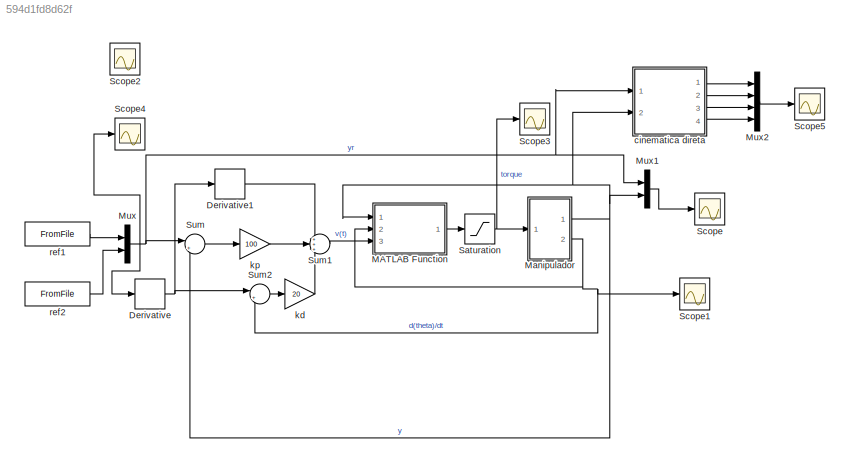
MODEL slx_594d1fd8d62f
KIND model
CONFIG AbsTol = auto
CONFIG FixedStep = 0.01
CONFIG MaxStep = 0.01
CONFIG MinStep = auto
CONFIG RelTol = 1e-3
CONFIG SampleTimeConstraint = Unconstrained
CONFIG Solver = ode4
CONFIG SolverMode = Auto
CONFIG SolverName = ode4
CONFIG StartTime = 0.0
CONFIG StopTime = tsim
BLOCK [Derivative] Derivative
BLOCK [Derivative] Derivative1
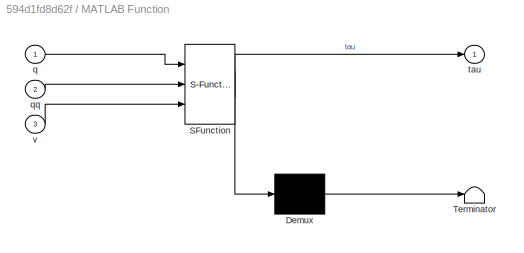
BLOCK [SubSystem] MATLAB Function
  ErrorFcn = Stateflow.Translate.translate
  PermitHierarchicalResolution = ExplicitOnly
  Ports = [3, 1]
  RequestExecContextInheritance = off
  SFBlockType = MATLAB Function
  TreatAsAtomicUnit = on
BLOCK [Demux] MATLAB Function/ Demux 
  Outputs = 1
  Ports = [1, 1]
BLOCK [S-Function] MATLAB Function/ SFunction 
  EnableBusSupport = on
  FunctionName = sf_sfun
  PortCounts = [3 2]
  Ports = [3, 2]
  Tag = Stateflow S-Function manipulador_PD_trajet 2
BLOCK [Terminator] MATLAB Function/ Terminator 
BLOCK [Inport] MATLAB Function/q
  IconDisplay = Port number
BLOCK [Inport] MATLAB Function/qq
  IconDisplay = Port number
  Port = 2
BLOCK [Outport] MATLAB Function/tau
  IconDisplay = Port number
BLOCK [Inport] MATLAB Function/v
  IconDisplay = Port number
  Port = 3
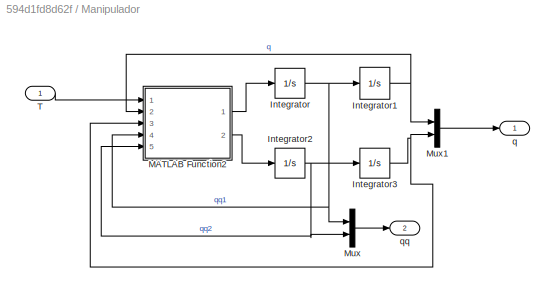
BLOCK [SubSystem] Manipulador
  Ports = [1, 2]
  RequestExecContextInheritance = off
BLOCK [Integrator] Manipulador/Integrator
  Ports = [1, 1]
BLOCK [Integrator] Manipulador/Integrator1
  Ports = [1, 1]
BLOCK [Integrator] Manipulador/Integrator2
  Ports = [1, 1]
BLOCK [Integrator] Manipulador/Integrator3
  InitialCondition = pi/4
  Ports = [1, 1]
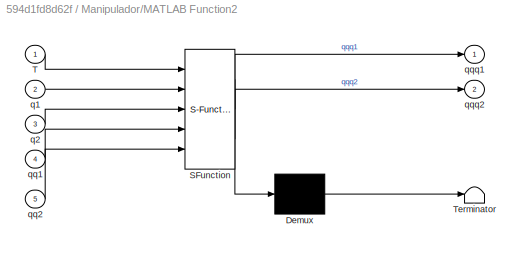
BLOCK [SubSystem] Manipulador/MATLAB Function2
  ErrorFcn = Stateflow.Translate.translate
  PermitHierarchicalResolution = ExplicitOnly
  Ports = [5, 2]
  RequestExecContextInheritance = off
  SFBlockType = MATLAB Function
  TreatAsAtomicUnit = on
BLOCK [Demux] Manipulador/MATLAB Function2/ Demux 
  Outputs = 1
  Ports = [1, 1]
BLOCK [S-Function] Manipulador/MATLAB Function2/ SFunction 
  EnableBusSupport = on
  FunctionName = sf_sfun
  PortCounts = [5 3]
  Ports = [5, 3]
  Tag = Stateflow S-Function manipulador_PD_trajet 3
BLOCK [Terminator] Manipulador/MATLAB Function2/ Terminator 
BLOCK [Inport] Manipulador/MATLAB Function2/T
  IconDisplay = Port number
BLOCK [Inport] Manipulador/MATLAB Function2/q1
  IconDisplay = Port number
  Port = 2
BLOCK [Inport] Manipulador/MATLAB Function2/q2
  IconDisplay = Port number
  Port = 3
BLOCK [Inport] Manipulador/MATLAB Function2/qq1
  IconDisplay = Port number
  Port = 4
BLOCK [Inport] Manipulador/MATLAB Function2/qq2
  IconDisplay = Port number
  Port = 5
BLOCK [Outport] Manipulador/MATLAB Function2/qqq1
  IconDisplay = Port number
BLOCK [Outport] Manipulador/MATLAB Function2/qqq2
  IconDisplay = Port number
  Port = 2
BLOCK [Mux] Manipulador/Mux
  DisplayOption = bar
  Inputs = 2
  Ports = [2, 1]
BLOCK [Mux] Manipulador/Mux1
  DisplayOption = bar
  Inputs = 2
  Ports = [2, 1]
BLOCK [Inport] Manipulador/T
  IconDisplay = Port number
BLOCK [Outport] Manipulador/q
  IconDisplay = Port number
  PortDimensions = 2
BLOCK [Outport] Manipulador/qq
  IconDisplay = Port number
  Port = 2
  PortDimensions = 2
BLOCK [Mux] Mux
  DisplayOption = bar
  Inputs = 2
  Ports = [2, 1]
BLOCK [Mux] Mux1
  DisplayOption = bar
  Inputs = 2
  Ports = [2, 1]
BLOCK [Mux] Mux2
  DisplayOption = bar
  Ports = [4, 1]
BLOCK [Saturate] Saturation
  InputPortMap = u0
  LowerLimit = -100
  Ports = [1, 1]
  UpperLimit = 100
BLOCK [Scope] Scope
  Floating = off
  LegendLocations = 0.76095     0.48946     0.12239     0.15793
  LimitDataPoints = off
  NumInputPorts = 1
  Ports = [1]
  SaveName = x
  SaveToWorkspace = on
  ShowLegends = on
BLOCK [Scope] Scope1
  Floating = off
  NumInputPorts = 1
  Ports = [1]
  SaveName = ScopeData1
  ShowLegends = on
BLOCK [Scope] Scope2
  DataFormat = StructureWithTime
  Floating = off
  IOType = viewer
  NumInputPorts = 1
  Ports = []
  SampleTime = 0
  SaveName = ScopeData2
BLOCK [Scope] Scope3
  Floating = off
  LegendLocations = 0.67997     0.68438     0.20779     0.11364
  NumInputPorts = 1
  Ports = [1]
  SaveName = ScopeData3
  ShowLegends = on
BLOCK [Scope] Scope4
  Floating = off
  LegendLocations = 0.83476     0.69249     0.11111     0.14085
  NumInputPorts = 1
  Ports = [1]
  SaveName = ScopeData4
  ShowLegends = on
BLOCK [Scope] Scope5
  Floating = off
  LimitDataPoints = off
  NumInputPorts = 1
  Ports = [1]
  SaveName = xy
  SaveToWorkspace = on
  ShowLegends = on
BLOCK [Sum] Sum
  IconShape = round
  InputSameDT = off
  Inputs = |+-
  OutDataTypeStr = Inherit: Inherit via internal rule
  Ports = [2, 1]
  SaturateOnIntegerOverflow = off
BLOCK [Sum] Sum1
  IconShape = round
  InputSameDT = off
  Inputs = +++
  OutDataTypeStr = Inherit: Inherit via internal rule
  Ports = [3, 1]
  SaturateOnIntegerOverflow = off
BLOCK [Sum] Sum2
  IconShape = round
  InputSameDT = off
  Inputs = |+-
  OutDataTypeStr = Inherit: Inherit via internal rule
  Ports = [2, 1]
  SaturateOnIntegerOverflow = off
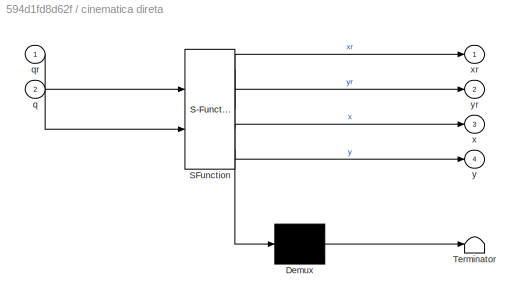
BLOCK [SubSystem] cinematica direta
  ErrorFcn = Stateflow.Translate.translate
  PermitHierarchicalResolution = ExplicitOnly
  Ports = [2, 4]
  RequestExecContextInheritance = off
  SFBlockType = MATLAB Function
  TreatAsAtomicUnit = on
BLOCK [Demux] cinematica direta/ Demux 
  Outputs = 1
  Ports = [1, 1]
BLOCK [S-Function] cinematica direta/ SFunction 
  EnableBusSupport = on
  FunctionName = sf_sfun
  PortCounts = [2 5]
  Ports = [2, 5]
  Tag = Stateflow S-Function manipulador_PD_trajet 1
BLOCK [Terminator] cinematica direta/ Terminator 
BLOCK [Inport] cinematica direta/q
  IconDisplay = Port number
  Port = 2
BLOCK [Inport] cinematica direta/qr
  IconDisplay = Port number
BLOCK [Outport] cinematica direta/x
  IconDisplay = Port number
  Port = 3
BLOCK [Outport] cinematica direta/xr
  IconDisplay = Port number
BLOCK [Outport] cinematica direta/y
  IconDisplay = Port number
  Port = 4
BLOCK [Outport] cinematica direta/yr
  IconDisplay = Port number
  Port = 2
BLOCK [Gain] kd
  Gain = 20
  OutDataTypeStr = Inherit: Inherit via internal rule
  ParamDataTypeStr = Inherit: Inherit via internal rule
  SaturateOnIntegerOverflow = off
BLOCK [Gain] kp
  Gain = 100
  OutDataTypeStr = Inherit: Inherit via internal rule
  ParamDataTypeStr = Inherit: Inherit via internal rule
  SaturateOnIntegerOverflow = off
BLOCK [FromFile] ref1
  FileName = ref1.mat
  SampleTime = 0
BLOCK [FromFile] ref2
  FileName = ref2.mat
  SampleTime = 0
LINE Derivative1:1 -> Sum1:1
NET Derivative:1 -> Derivative1:1, Sum2:1
LINE MATLAB Function:1 -> Saturation:1
NET Manipulador/Integrator1:1 -> Manipulador/MATLAB Function2:2, Manipulador/Mux1:1
NET Manipulador/Integrator2:1 -> Manipulador/Integrator3:1, Manipulador/MATLAB Function2:5, Manipulador/Mux:2
NET Manipulador/Integrator3:1 -> Manipulador/MATLAB Function2:3, Manipulador/Mux1:2
NET Manipulador/Integrator:1 -> Manipulador/Integrator1:1, Manipulador/MATLAB Function2:4, Manipulador/Mux:1
LINE Manipulador/MATLAB Function2:1 -> Manipulador/Integrator:1
LINE Manipulador/MATLAB Function2:2 -> Manipulador/Integrator2:1
LINE Manipulador/Mux1:1 -> Manipulador/q:1
LINE Manipulador/Mux:1 -> Manipulador/qq:1
LINE Manipulador/T:1 -> Manipulador/MATLAB Function2:1
NET Manipulador:1 -> MATLAB Function:1, Mux1:2, Sum:2, cinematica direta:2
NET Manipulador:2 -> MATLAB Function:2, Scope1:1, Sum2:2
LINE Mux1:1 -> Scope:1
LINE Mux2:1 -> Scope5:1
NET Mux:1 -> Derivative:1, Mux1:1, Scope4:1, Sum:1, cinematica direta:1
NET Saturation:1 -> Manipulador:1, Scope3:1
LINE Sum1:1 -> MATLAB Function:3
LINE Sum2:1 -> kd:1
LINE Sum:1 -> kp:1
LINE cinematica direta:1 -> Mux2:1
LINE cinematica direta:2 -> Mux2:2
LINE cinematica direta:3 -> Mux2:3
LINE cinematica direta:4 -> Mux2:4
LINE kd:1 -> Sum1:3
LINE kp:1 -> Sum1:2
LINE ref1:1 -> Mux:1
LINE ref2:1 -> Mux:2
note: NET lines group one-source signal fan-out (src -> all destinations, sorted); 1:1 wires keep LINE
CHART cinematica direta states=1 transitions=1
  STATE_LABEL 'eML_blk_kernel()'
  STATE_LABEL 'SCRIPT:\nfunction [xr, yr, x, y] = cin_dir(qr, q)\nL1 = 0.6;\nL2 = 0.6;\n\nx = L1*cos(q(1))+L2*cos(q(1)+q(2));\ny = L1*sin(q(1))+L2*sin(q(1)+q(2));\n\nxr = L1*cos(qr(1))+L2*cos(qr(1)+qr(2));\nyr = L1*sin(qr(1))+L2*sin(qr(1)+qr(2));\n'
CHART MATLAB Function states=1 transitions=1
  STATE_LABEL 'eML_blk_kernel()'
  STATE_LABEL 'SCRIPT:\nfunction tau = fcn(q, qq, v)\nq1=q(1);\nq2=q(2);\nqq1=qq(1);\nqq2=qq(2);\nm1 = 2.2;\nm2 = 2.2;\nL1 = 0.6;\nL2 = 0.6;\ng=9.81;\nl1 = 0.3;\nl2 = 0.3;\nI1 = 0.066;\nI2 = 0.066;\nmp=4;\n\nH = zeros(2,1);\nH(1) = -L1*(m2*l2+mp*L2)*sin(q2)*(2*qq1*qq2+qq2^2)+(m1*l1+(m2+mp)*L1)*g*cos(q1)+(m2*l2+mp*L1)*g*cos(q1+q2);\nH(2) = L1*(m2*l2+mp*L2)*sin(q2)*qq1^2+(m2*l2+mp*L1)*g*cos(q1+q2);\n\nM = zeros(2,2);\nM(1,1) = I1+I2+m1...<+175ch>'
CHART Manipulador/MATLAB Function2 states=1 transitions=1
  STATE_LABEL 'eML_blk_kernel()'
  STATE_LABEL 'SCRIPT:\nfunction [qqq1, qqq2] = Manip(T, q1, q2, qq1, qq2)\nm1 = 2.2;\nm2 = 2.2;\nL1 = 0.6;\nL2 = 0.6;\ng=9.81;\nl1 = 0.3;\nl2 = 0.3;\nI1 = 0.066;\nI2 = 0.066;\nmp=4;\n\nH = zeros(2,1);\nH(1) = -L1*(m2*l2+mp*L2)*sin(q2)*(2*qq1*qq2+qq2^2)+(m1*l1+(m2+mp)*L1)*g*cos(q1)+(m2*l2+mp*L1)*g*cos(q1+q2);\nH(2) = L1*(m2*l2+mp*L2)*sin(q2)*qq1^2+(m2*l2+mp*L1)*g*cos(q1+q2);\n\nM = zeros(2,2);\nM(1,1) = I1+I2+m1*l1^2+(m2+mp)*L1^2...<+231ch>'
